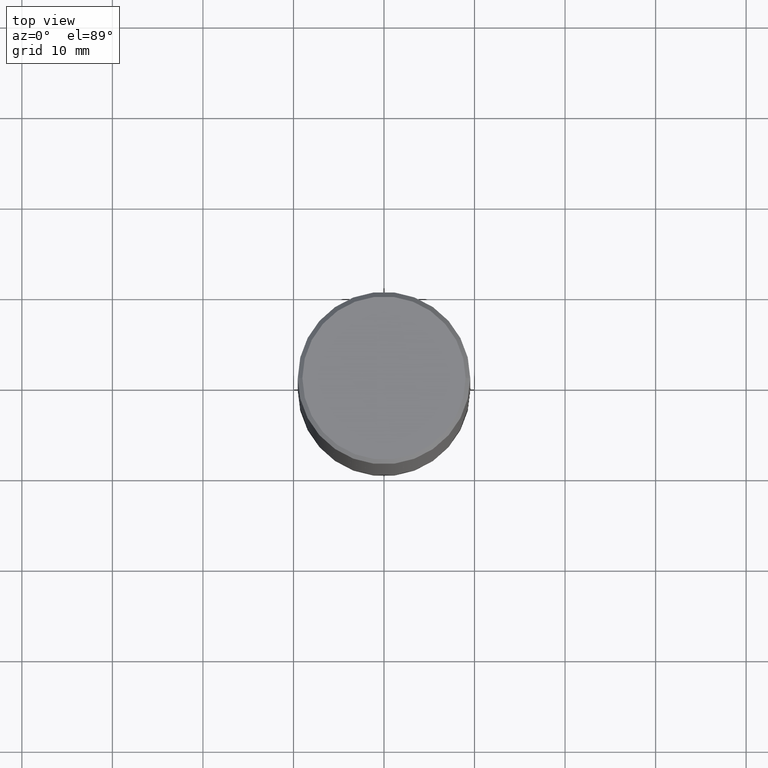
[diagram: clean part render]
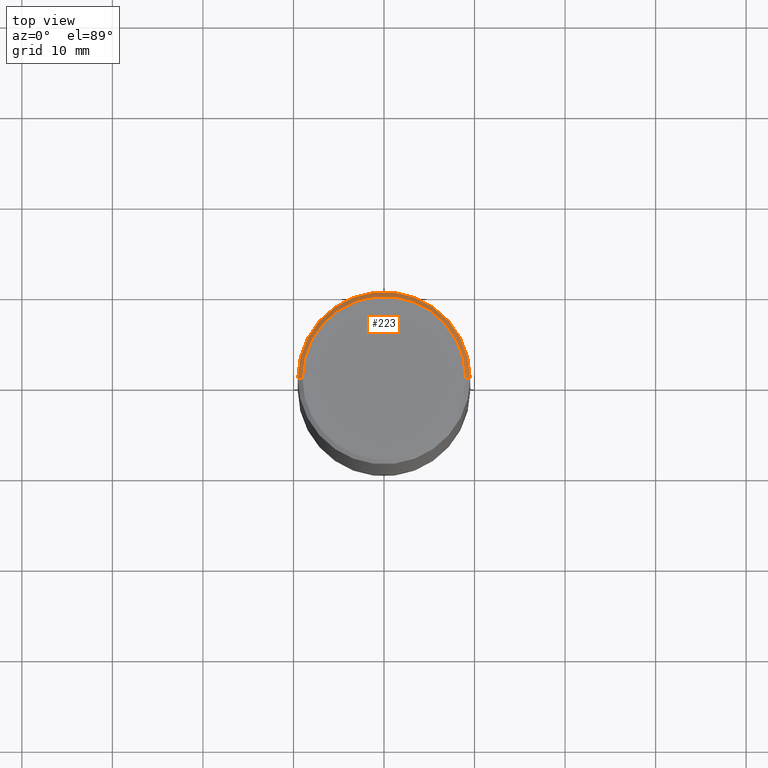
[diagram: same view with one face highlighted and labeled with its STEP entity id]
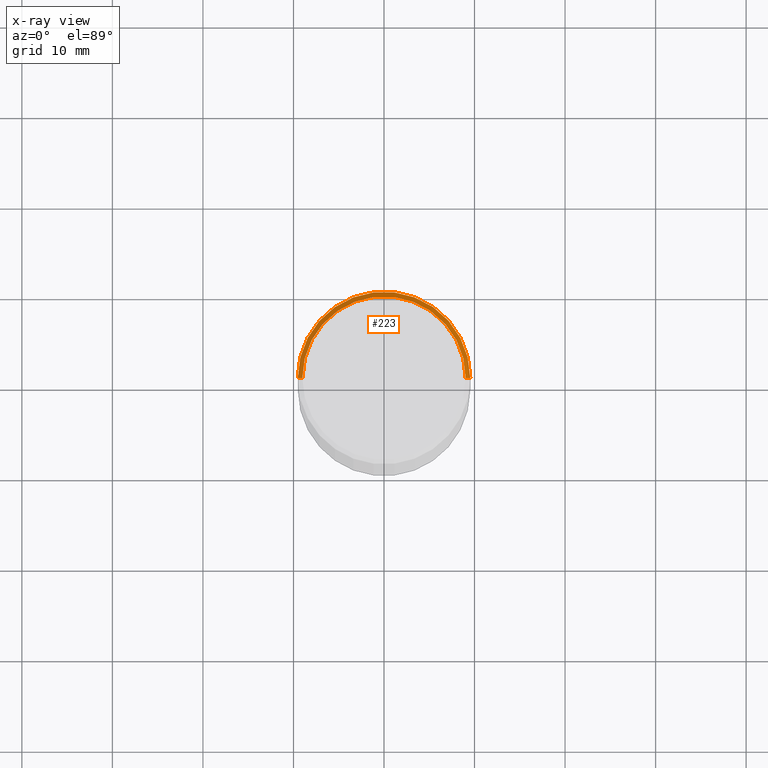
[diagram: x-ray of the same camera — body ghosted, the highlighted face saturated]
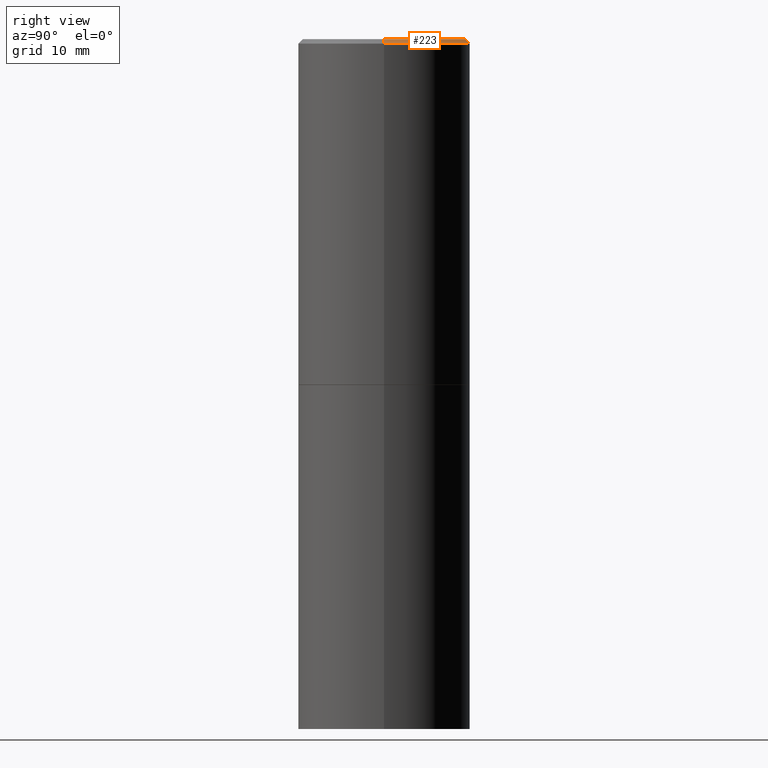
[diagram: same view with one face highlighted and labeled with its STEP entity id]
A machine part, top view. The second image highlights one B-rep face of the part: STEP entity #223.
The next image is the same camera in x-ray: the body ghosted, the highlighted face saturated — about 0% of this face is hidden behind the body in this view.
A second angle (right view) of the same face is appended — the face is thin or edge-on in the first view.
In plain terms, the highlighted conical surface has half-angle 45 deg.
Its self-contained STEP definition (entity closure, byte-faithful):
#13 = AXIS2_PLACEMENT_3D ( 'NONE', #34, #295, #362 ) ;
#25 = DIRECTION ( 'NONE',  ( -0.7071067811865467956, 2.468850131082249172E-15, -0.7071067811865482389 ) ) ;
#31 = CIRCLE ( 'NONE', #276, 0.3749999999999998335 ) ;
#34 = CARTESIAN_POINT ( 'NONE',  ( -1.043851414335219820E-46, 1.490343170380447200E-32, 4.268512490100411279E-18 ) ) ;
#44 = VECTOR ( 'NONE', #137, 39.37007874015748143 ) ;
#53 = CARTESIAN_POINT ( 'NONE',  ( 4.890937612370280165E-31, -6.982962677686301470E-17, -0.02000000000000003164 ) ) ;
#58 = EDGE_CURVE ( 'NONE', #104, #389, #31, .T. ) ;
#92 = CIRCLE ( 'NONE', #13, 0.3549999999999998157 ) ;
#104 = VERTEX_POINT ( 'NONE', #143 ) ;
#121 = LINE ( 'NONE', #125, #173 ) ;
#125 = CARTESIAN_POINT ( 'NONE',  ( -0.3749999999999998335, 2.548781377355485929E-15, -0.02000000000000003164 ) ) ;
#129 = CONICAL_SURFACE ( 'NONE', #242, 0.3749999999999998335, 0.7853981633974472798 ) ;
#134 = CARTESIAN_POINT ( 'NONE',  ( 0.3749999999999998335, -2.642516375941186056E-15, -0.02000000000000003164 ) ) ;
#137 = DIRECTION ( 'NONE',  ( 0.7071067811865467956, -7.319954787623254468E-15, -0.7071067811865482389 ) ) ;
#143 = CARTESIAN_POINT ( 'NONE',  ( 0.3749999999999998335, -2.642516375941186056E-15, -0.02000000000000003164 ) ) ;
#152 = EDGE_CURVE ( 'NONE', #232, #104, #310, .T. ) ;
#153 = EDGE_LOOP ( 'NONE', ( #306, #203, #374, #187 ) ) ;
#161 = CARTESIAN_POINT ( 'NONE',  ( -0.3749999999999998335, 2.548781377355485929E-15, -0.02000000000000003164 ) ) ;
#173 = VECTOR ( 'NONE', #25, 39.37007874015748143 ) ;
#177 = DIRECTION ( 'NONE',  ( -1.000000000000000000, 6.982962677686265922E-15, 0.000000000000000000 ) ) ;
#187 = ORIENTED_EDGE ( 'NONE', *, *, #207, .F. ) ;
#203 = ORIENTED_EDGE ( 'NONE', *, *, #152, .T. ) ;
#207 = EDGE_CURVE ( 'NONE', #353, #389, #121, .T. ) ;
#223 = ADVANCED_FACE ( 'NONE', ( #240 ), #129, .T. ) ;
#232 = VERTEX_POINT ( 'NONE', #359 ) ;
#240 = FACE_OUTER_BOUND ( 'NONE', #153, .T. ) ;
#241 = EDGE_CURVE ( 'NONE', #232, #353, #92, .T. ) ;
#242 = AXIS2_PLACEMENT_3D ( 'NONE', #53, #243, #177 ) ;
#243 = DIRECTION ( 'NONE',  ( 2.445468806185136597E-29, -3.491481338843145583E-15, -1.000000000000000000 ) ) ;
#248 = CARTESIAN_POINT ( 'NONE',  ( -0.3549999999999998157, 2.513866563967054675E-15, 4.268512490082953109E-18 ) ) ;
#251 = CARTESIAN_POINT ( 'NONE',  ( 4.890937612370280165E-31, -6.982962677686301470E-17, -0.02000000000000003164 ) ) ;
#276 = AXIS2_PLACEMENT_3D ( 'NONE', #251, #347, #285 ) ;
#285 = DIRECTION ( 'NONE',  ( 1.000000000000000000, -6.982962677686265922E-15, 0.000000000000000000 ) ) ;
#295 = DIRECTION ( 'NONE',  ( -2.445468806185136597E-29, 3.491481338843145583E-15, 1.000000000000000000 ) ) ;
#306 = ORIENTED_EDGE ( 'NONE', *, *, #241, .F. ) ;
#310 = LINE ( 'NONE', #134, #44 ) ;
#347 = DIRECTION ( 'NONE',  ( -2.445468806185136597E-29, 3.491481338843145583E-15, 1.000000000000000000 ) ) ;
#353 = VERTEX_POINT ( 'NONE', #248 ) ;
#359 = CARTESIAN_POINT ( 'NONE',  ( 0.3549999999999998157, -2.538996582575039076E-15, 4.268512490117958041E-18 ) ) ;
#362 = DIRECTION ( 'NONE',  ( 1.000000000000000000, -6.982962677686266711E-15, 4.876231632511990425E-29 ) ) ;
#374 = ORIENTED_EDGE ( 'NONE', *, *, #58, .T. ) ;
#389 = VERTEX_POINT ( 'NONE', #161 ) ;